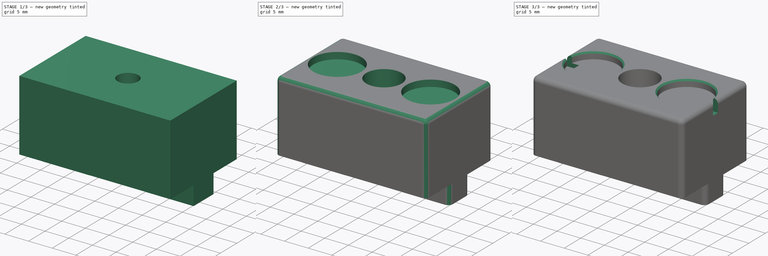
[diagram: build sequence overview — one tinted view per stage of 3, left to right]
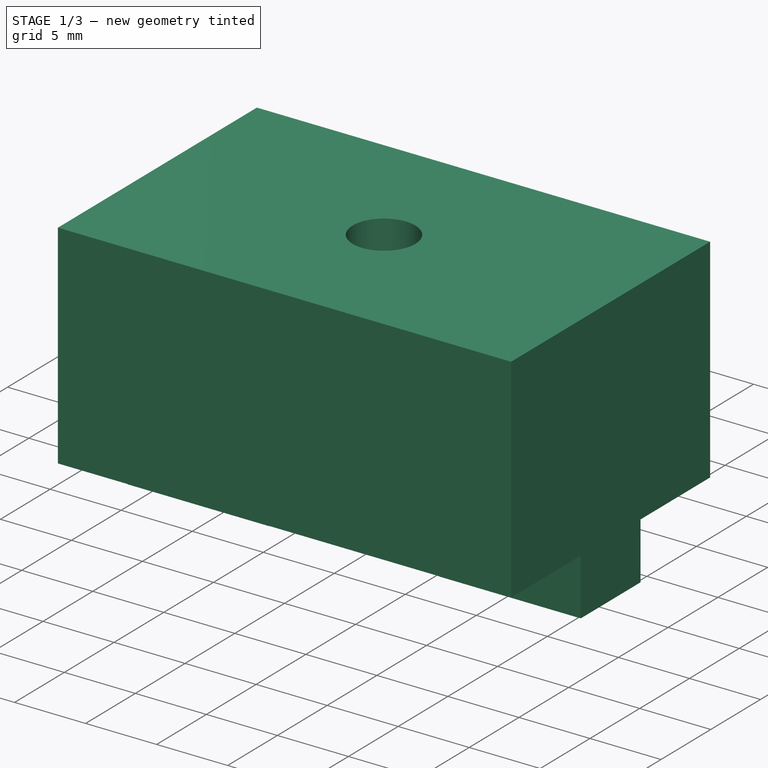
[diagram: stage 1 of 3 — iso view after this stage's code; geometry added in this stage tinted green]
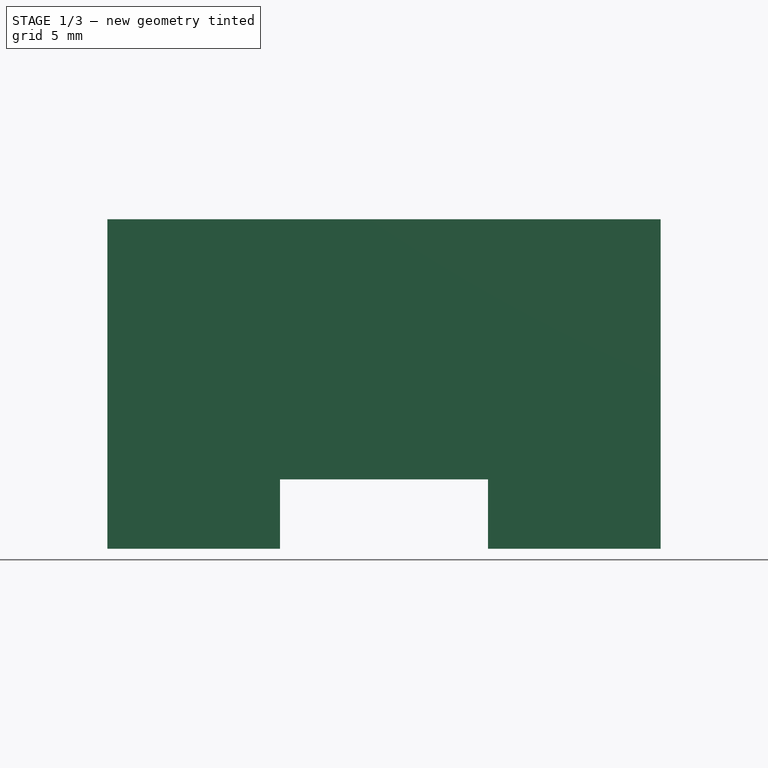
[diagram: stage 1 of 3 — front view after this stage's code; geometry added in this stage tinted green]
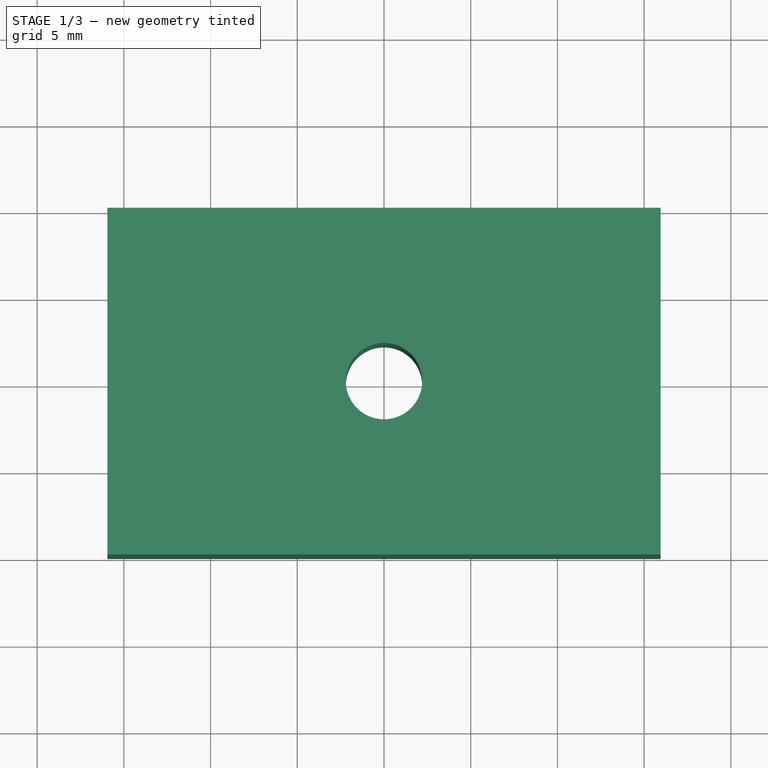
[diagram: stage 1 of 3 — top view after this stage's code; geometry added in this stage tinted green]
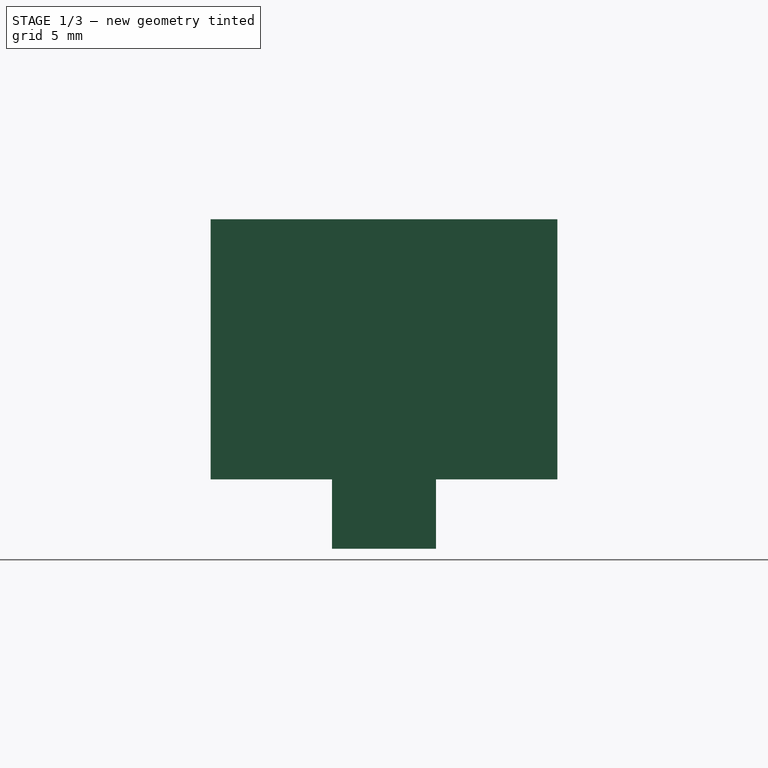
[diagram: stage 1 of 3 — right view after this stage's code; geometry added in this stage tinted green]
FCSTD DOCUMENT  (FreeCAD 0.18.3R)
Label: MagnetHolder
License: All rights reserved
LicenseURL: http://en.wikipedia.org/wiki/All_rights_reserved
objects: Sketcher::SketchObject×6, PartDesign::Pocket×3, PartDesign::Pad×2, PartDesign::Fillet×1, PartDesign::Chamfer×1, PartDesign::Body×1, App::Part×1
note: 19 computed .brp shape members not serialized (recipe doc carries the construction recipe); baked Part::Feature solids carry a one-line shape summary decoded from their .brp

FEATURE [Sketcher::SketchObject] Sketch  label="Template"
  MapMode = 5
  Support = -> [XY_Plane001]
  sketch-geometry (20):
    g0: LineSegment StartX=-15.95 StartY=10 StartZ=0 EndX=15.95 EndY=10 EndZ=0
    g1: LineSegment StartX=15.95 StartY=10 StartZ=0 EndX=15.95 EndY=-10 EndZ=0
    g2: LineSegment StartX=15.95 StartY=-10 StartZ=0 EndX=-15.95 EndY=-10 EndZ=0
    g3: LineSegment StartX=-15.95 StartY=-10 StartZ=0 EndX=-15.95 EndY=10 EndZ=0
    g4: LineSegment StartX=-15.95 StartY=0 StartZ=0 EndX=15.95 EndY=0 EndZ=0
    g5: Circle CenterX=0 CenterY=0 CenterZ=0 NormalX=0 NormalY=0 NormalZ=1 AngleXU=0 Radius=3.75
    g6: LineSegment StartX=-3.75 StartY=10 StartZ=0 EndX=-3.75 EndY=-10 EndZ=0
    g7: LineSegment StartX=3.75 StartY=10 StartZ=0 EndX=3.75 EndY=-10 EndZ=0
    g8: LineSegment StartX=6 StartY=3 StartZ=0 EndX=15.95 EndY=3 EndZ=0
    g9: LineSegment StartX=15.95 StartY=-3 StartZ=0 EndX=6 EndY=-3 EndZ=0
    g10: LineSegment StartX=6 StartY=-3 StartZ=0 EndX=6 EndY=3 EndZ=0
    g11: Circle CenterX=0 CenterY=0 CenterZ=0 NormalX=0 NormalY=0 NormalZ=1 AngleXU=0 Radius=2.2
    g12: Circle CenterX=9.85 CenterY=-2e-16 CenterZ=0 NormalX=0 NormalY=0 NormalZ=1 AngleXU=0 Radius=5.1
    g13: LineSegment StartX=0 StartY=10 StartZ=0 EndX=0 EndY=-10 EndZ=0
    g14: LineSegment StartX=4.75 StartY=10 StartZ=0 EndX=4.75 EndY=-10 EndZ=0
    g15: LineSegment StartX=-4.75 StartY=10 StartZ=0 EndX=-4.75 EndY=-10 EndZ=0
    g16: Circle CenterX=-9.85 CenterY=0 CenterZ=0 NormalX=0 NormalY=0 NormalZ=1 AngleXU=0 Radius=5.1
    g17: LineSegment StartX=-15.95 StartY=3 StartZ=0 EndX=-6 EndY=3 EndZ=0
    g18: LineSegment StartX=-6 StartY=3 StartZ=0 EndX=-6 EndY=-3 EndZ=0
    g19: LineSegment StartX=-6 StartY=-3 StartZ=0 EndX=-15.95 EndY=-3 EndZ=0
  constraints (60):
    c: Coincident(g1,g2)
    c: Coincident(g2,g3)
    c: Horizontal(g0)
    c: Horizontal(g2)
    c: Vertical(g1)
    c: Vertical(g3)
    c: PointOnObject(g4,g3)
    c: Symmetric(g0,g2,g4)
    c: Coincident(g0,g3)
    c: Coincident(g0,g1)
    c: PointOnObject(g4,g1)
    c: PointOnObject(g5,g4)
    c: Radius(g5) = 3.75
    c: PointOnObject(g6,g0)
    c: PointOnObject(g6,g2)
    c: Vertical(g6)
    c: Tangent(g6,g5)
    c: PointOnObject(g7,g0)
    c: PointOnObject(g7,g2)
    c: Vertical(g7)
    c: Tangent(g7,g5)
    c: Coincident(g9,g10)
    c: Coincident(g10,g8)
    c: Horizontal(g8)
    c: Horizontal(g9)
    c: Vertical(g10)
    c: PointOnObject(g9,g1)
    c: Symmetric(g9,g8,g4)
    c: DistanceY(g9,g8) = 6
    c: DistanceX(g5,g8) = 6
    c: Coincident(g11,g5)
    c: Radius(g11) = 2.2
    c: Symmetric(g7,g0,g12)
    c: Radius(g12) = 5.1
    c: PointOnObject(g13,g2)
    c: PointOnObject(g13,g0)
    c: PointOnObject(g5,g13)
    c: PointOnObject(g14,g0)
    c: PointOnObject(g14,g2)
    c: Vertical(g14)
    c: Tangent(g14,g12)
    c: DistanceX(g7,g14) = 1
    c: DistanceY(g1,g1) = 20
    c: Symmetric(g0,g0,g13)
    c: PointOnObject(g15,g2)
    c: Vertical(g15)
    c: Symmetric(g15,g14,g13)
    c: PointOnObject(g16,g4)
    c: Equal(g16,g12)
    c: Tangent(g16,g15)
    c: PointOnObject(g17,g3)
    c: Horizontal(g17)
    c: Coincident(g17,g18)
    c: Vertical(g18)
    c: Coincident(g18,g19)
    c: PointOnObject(g19,g3)
    c: Horizontal(g19)
    c: Equal(g18,g10)
    c: Symmetric(g17,g8,g13)
    c: Coincident(g5,g-1)  '__ANCHOR__'
FEATURE [Sketcher::SketchObject] Sketch001
  ExternalGeometry = -> [Sketch]
  MapMode = 5
  Support = -> [XY_Plane001]
  sketch-geometry (5):
    g0: LineSegment StartX=-15.95 StartY=10 StartZ=0 EndX=15.95 EndY=10 EndZ=0
    g1: LineSegment StartX=15.95 StartY=10 StartZ=0 EndX=15.95 EndY=-10 EndZ=0
    g2: LineSegment StartX=15.95 StartY=-10 StartZ=0 EndX=-15.95 EndY=-10 EndZ=0
    g3: LineSegment StartX=-15.95 StartY=-10 StartZ=0 EndX=-15.95 EndY=10 EndZ=0
    g4: Circle CenterX=0 CenterY=0 CenterZ=0 NormalX=0 NormalY=0 NormalZ=1 AngleXU=0 Radius=2.2
  constraints (10):
    c: Coincident(g-3,g0)
    c: Coincident(g0,g-4)
    c: Coincident(g0,g1)
    c: Coincident(g1,g-4)
    c: Coincident(g1,g2)
    c: Coincident(g2,g-3)
    c: Coincident(g2,g3)
    c: Coincident(g3,g0)
    c: Coincident(g4,g-5)
    c: Equal(g4,g-5)
FEATURE [PartDesign::Pad] Pad
  Length = 15
  Length2 = 100
  Profile = -> Sketch001
  Type = 0
FEATURE [Sketcher::SketchObject] Sketch002
  ExternalGeometry = -> [Sketch]
  MapMode = 5
  Support = -> [XY_Plane001]
  sketch-geometry (8):
    g0: LineSegment StartX=6 StartY=3 StartZ=0 EndX=15.95 EndY=3 EndZ=0
    g1: LineSegment StartX=15.95 StartY=3 StartZ=0 EndX=15.95 EndY=-3 EndZ=0
    g2: LineSegment StartX=15.95 StartY=-3 StartZ=0 EndX=6 EndY=-3 EndZ=0
    g3: LineSegment StartX=6 StartY=-3 StartZ=0 EndX=6 EndY=3 EndZ=0
    g4: LineSegment StartX=-15.95 StartY=3 StartZ=0 EndX=-6 EndY=3 EndZ=0
    g5: LineSegment StartX=-6 StartY=3 StartZ=0 EndX=-6 EndY=-3 EndZ=0
    g6: LineSegment StartX=-6 StartY=-3 StartZ=0 EndX=-15.95 EndY=-3 EndZ=0
    g7: LineSegment StartX=-15.95 StartY=-3 StartZ=0 EndX=-15.95 EndY=3 EndZ=0
  constraints (18):
    c: Coincident(g-3,g0)
    c: Coincident(g0,g-3)
    c: Coincident(g0,g1)
    c: Coincident(g1,g-4)
    c: Coincident(g1,g2)
    c: Coincident(g2,g-4)
    c: Coincident(g2,g3)
    c: Coincident(g3,g0)
    c: Coincident(g4,g5)
    c: Coincident(g5,g6)
    c: Coincident(g6,g7)
    c: Coincident(g7,g4)
    c: Horizontal(g4)
    c: Horizontal(g6)
    c: Vertical(g5)
    c: Vertical(g7)
    c: Coincident(g5,g-6)
    c: Coincident(g4,g-5)
FEATURE [PartDesign::Pad] Pad001
  BaseFeature = -> Pad
  Length = 4
  Length2 = 100
  Profile = -> Sketch002
  Reversed = true
  Type = 0
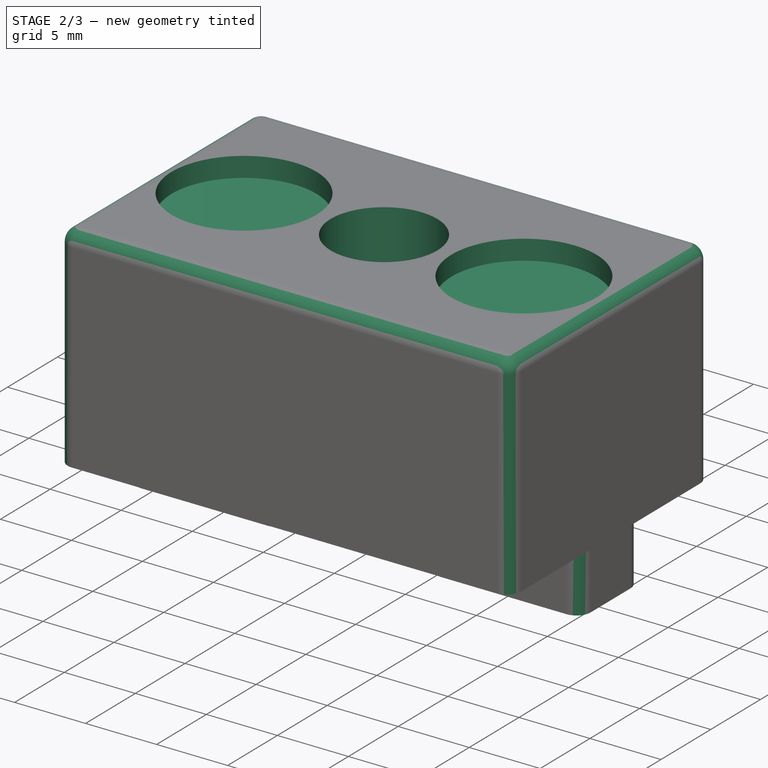
[diagram: stage 2 of 3 — iso view after this stage's code; geometry added in this stage tinted green]
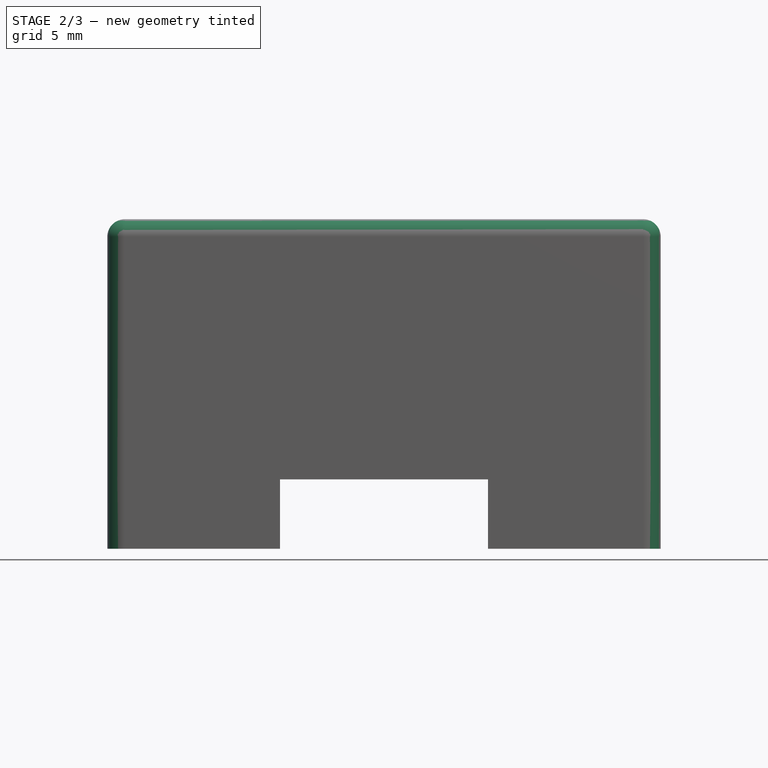
[diagram: stage 2 of 3 — front view after this stage's code; geometry added in this stage tinted green]
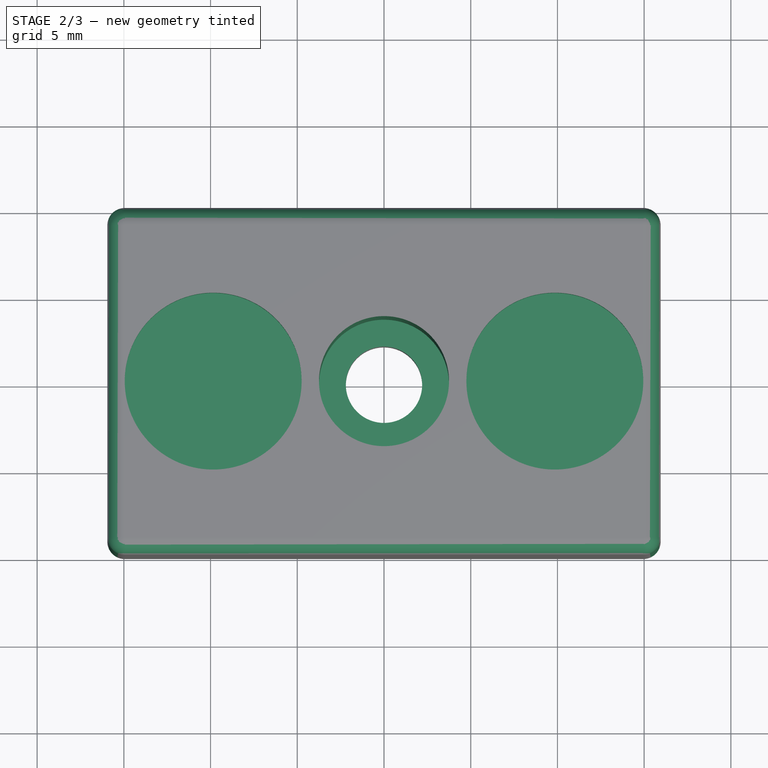
[diagram: stage 2 of 3 — top view after this stage's code; geometry added in this stage tinted green]
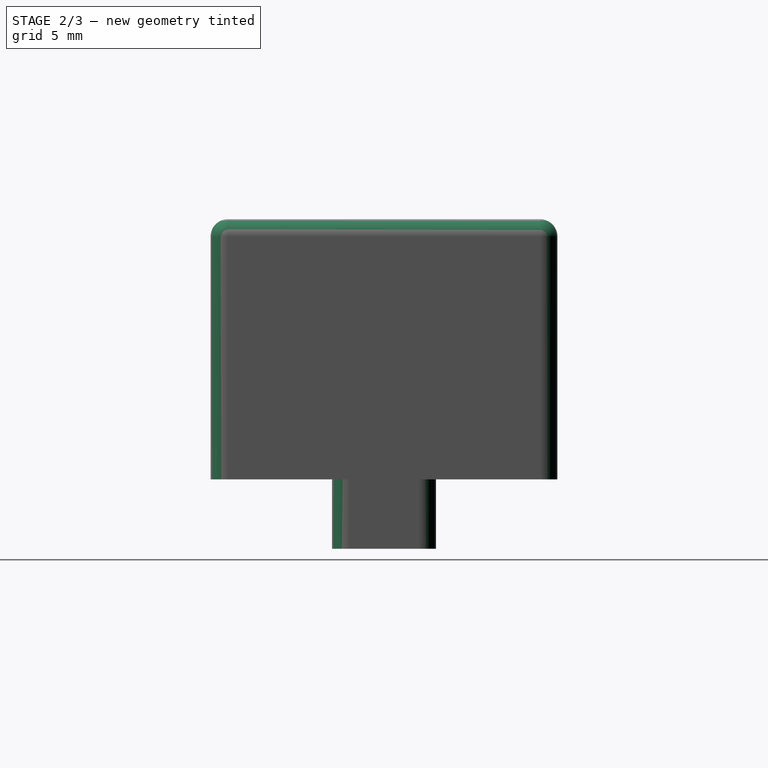
[diagram: stage 2 of 3 — right view after this stage's code; geometry added in this stage tinted green]
FEATURE [Sketcher::SketchObject] Sketch003
  AttachmentOffset = pos=(0,0,15) rot=(0,0,1;0rad)
  ExternalGeometry = -> [Sketch]
  MapMode = 5
  Placement = pos=(0,0,15) rot=(0,0,1;0rad)
  Support = -> [XY_Plane001]
  expr: AttachmentOffset.Base.z = Sketch.Placement.Base.z + Pad.Length
  sketch-geometry (2):
    g0: Circle CenterX=9.85 CenterY=-2e-16 CenterZ=0 NormalX=0 NormalY=0 NormalZ=1 AngleXU=0 Radius=5.1
    g1: Circle CenterX=-9.85 CenterY=0 CenterZ=0 NormalX=0 NormalY=0 NormalZ=1 AngleXU=0 Radius=5.1
  constraints (4):
    c: Equal(g0,g-3)
    c: Coincident(g0,g-3)
    c: Coincident(g1,g-4)
    c: Equal(g1,g-4)
FEATURE [Sketcher::SketchObject] Sketch004
  AttachmentOffset = pos=(0,0,15) rot=(0,0,1;0rad)
  ExternalGeometry = -> [Sketch]
  MapMode = 5
  Placement = pos=(0,0,15) rot=(0,0,1;0rad)
  Support = -> [XY_Plane001]
  expr: AttachmentOffset.Base.z = Sketch003.Placement.Base.z
  sketch-geometry (1):
    g0: Circle CenterX=0 CenterY=0 CenterZ=0 NormalX=0 NormalY=0 NormalZ=1 AngleXU=0 Radius=3.75
  constraints (2):
    c: Coincident(g0,g-3)
    c: Equal(g0,g-3)
FEATURE [PartDesign::Fillet] Fillet
  Base = -> Pad001 [Edge23,Edge14,Edge4,Edge9,Edge2,Edge1,Edge5,Edge10,Edge29,Edge28,Edge25,Edge26]
  BaseFeature = -> Pad001
  Radius = 1
FEATURE [PartDesign::Pocket] Pocket
  BaseFeature = -> Fillet
  Length = 1.4
  Length2 = 100
  Profile = -> Sketch003
  Type = 0
FEATURE [PartDesign::Pocket] Pocket001
  BaseFeature = -> Pocket
  Length = 12
  Length2 = 100
  Profile = -> Sketch004
  Type = 0
  expr: Length = Pad.Length - 3mm
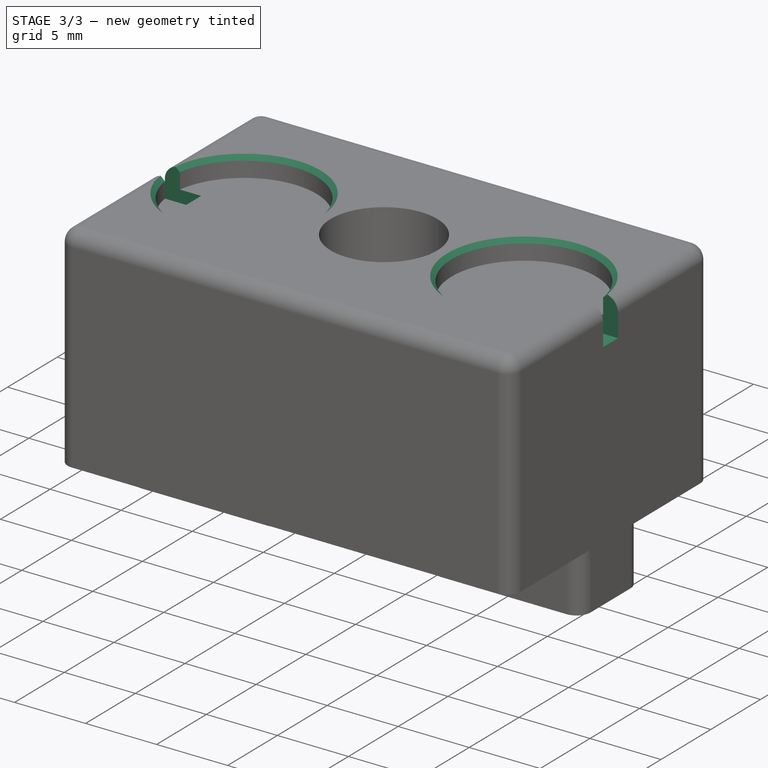
[diagram: stage 3 of 3 — iso view after this stage's code; geometry added in this stage tinted green]
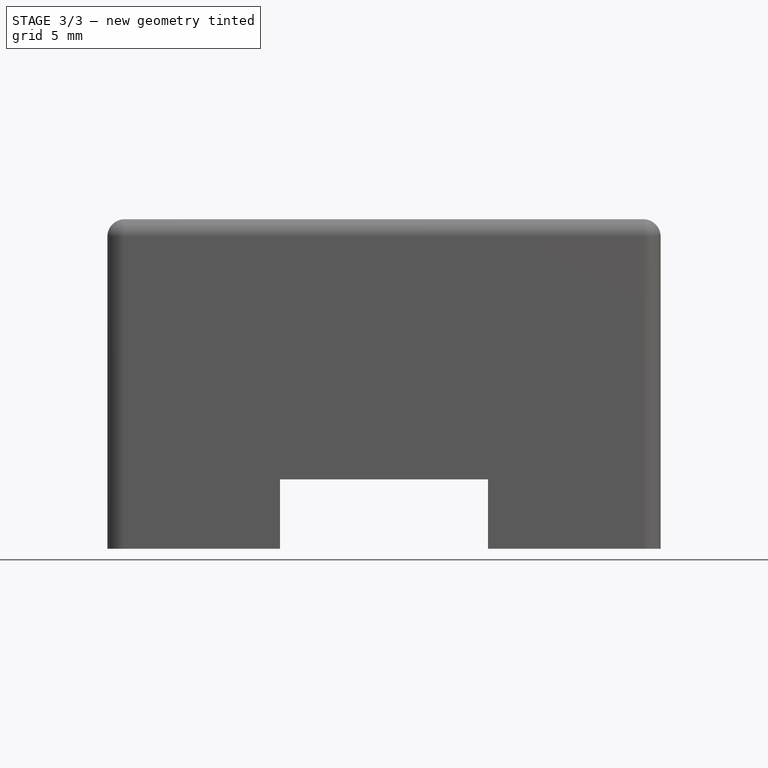
[diagram: stage 3 of 3 — front view after this stage's code; geometry added in this stage tinted green]
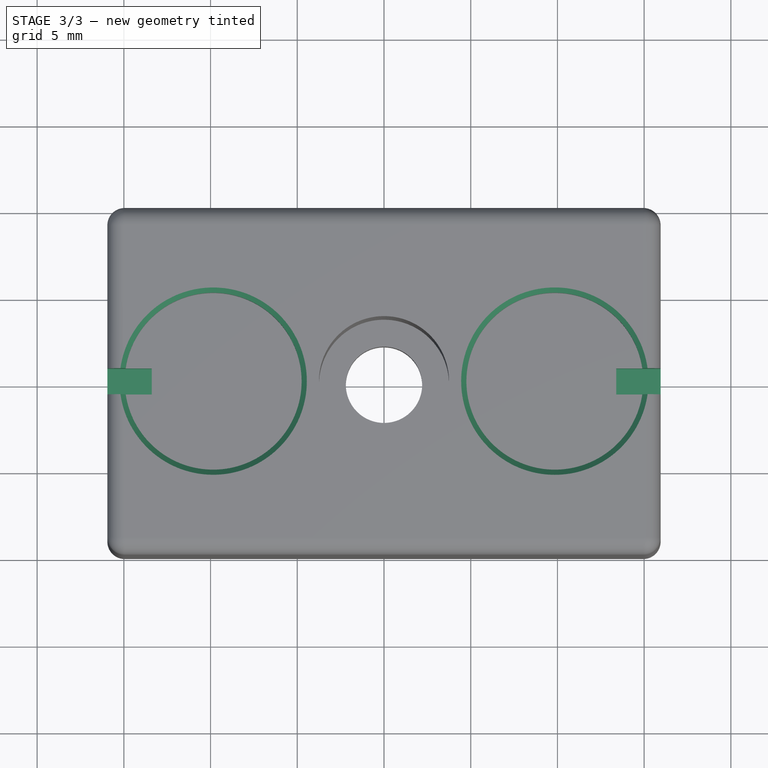
[diagram: stage 3 of 3 — top view after this stage's code; geometry added in this stage tinted green]
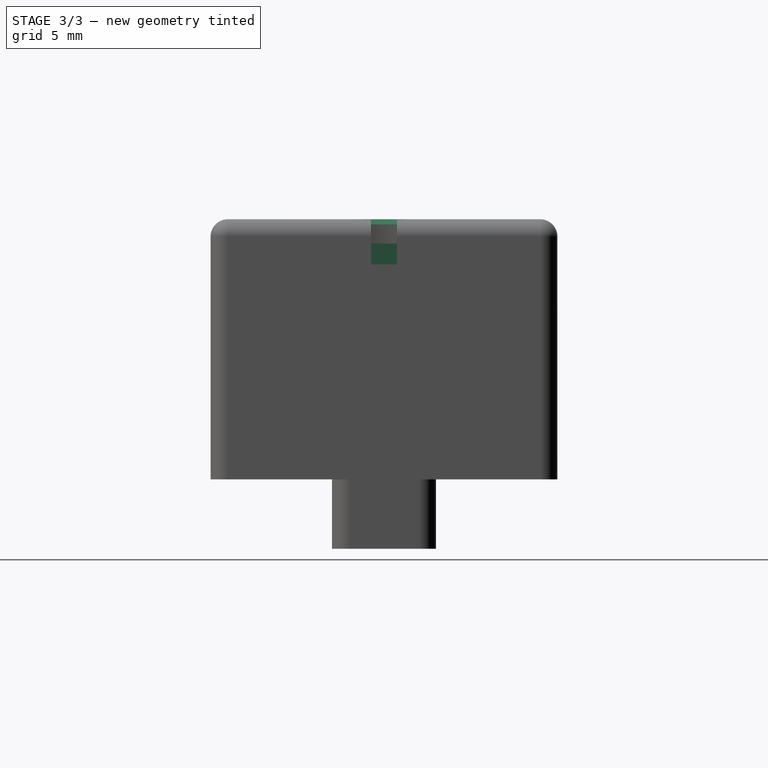
[diagram: stage 3 of 3 — right view after this stage's code; geometry added in this stage tinted green]
FEATURE [Sketcher::SketchObject] Sketch005
  AttachmentOffset = pos=(0,0,15) rot=(0,0,1;0rad)
  ExternalGeometry = -> [Sketch]
  MapMode = 5
  Placement = pos=(0,0,15) rot=(0,0,1;0rad)
  Support = -> [XY_Plane001]
  expr: AttachmentOffset.Base.z = Sketch003.Placement.Base.z
  sketch-geometry (9):
    g0: LineSegment StartX=15.95 StartY=0.75 StartZ=0 EndX=13.3946 EndY=0.75 EndZ=0
    g1: LineSegment StartX=13.3946 StartY=0.75 StartZ=0 EndX=13.3946 EndY=-0.75 EndZ=0
    g2: LineSegment StartX=13.3946 StartY=-0.75 StartZ=0 EndX=15.95 EndY=-0.75 EndZ=0
    g3: LineSegment StartX=15.95 StartY=-0.75 StartZ=0 EndX=15.95 EndY=0.75 EndZ=0
    g4: GeomPoint X=14.8946 Y=0.75 Z=0
    g5: LineSegment StartX=-15.95 StartY=0.75 StartZ=0 EndX=-13.3946 EndY=0.75 EndZ=0
    g6: LineSegment StartX=-13.3946 StartY=0.75 StartZ=0 EndX=-13.3946 EndY=-0.75 EndZ=0
    g7: LineSegment StartX=-13.3946 StartY=-0.75 StartZ=0 EndX=-15.95 EndY=-0.75 EndZ=0
    g8: LineSegment StartX=-15.95 StartY=-0.75 StartZ=0 EndX=-15.95 EndY=0.75 EndZ=0
  constraints (24):
    c: Coincident(g0,g1)
    c: Coincident(g1,g2)
    c: Coincident(g2,g3)
    c: Coincident(g3,g0)
    c: Horizontal(g0)
    c: Horizontal(g2)
    c: Vertical(g1)
    c: PointOnObject(g0,g-3)
    c: Symmetric(g0,g2,g-4)
    c: DistanceY(g3,g3) = 1.5
    c: PointOnObject(g4,g0)
    c: PointOnObject(g4,g-5)
    c: DistanceX(g0,g4) = 1.5
    c: Coincident(g5,g6)
    c: Coincident(g6,g7)
    c: Coincident(g7,g8)
    c: Coincident(g8,g5)
    c: Horizontal(g5)
    c: Horizontal(g7)
    c: Vertical(g6)
    c: Vertical(g8)
    c: PointOnObject(g5,g-6)
    c: Equal(g6,g1)
    c: Symmetric(g5,g0,g-7)
FEATURE [PartDesign::Pocket] Pocket002
  BaseFeature = -> Pocket001
  Length = 2.6
  Length2 = 100
  Profile = -> Sketch005
  Refine = true
  Type = 0
  expr: Length = Pocket.Length + 1.2mm
FEATURE [PartDesign::Chamfer] Chamfer
  Base = -> Pocket002 [Edge68,Edge74]
  BaseFeature = -> Pocket002
  Size = 0.3
FEATURE [PartDesign::Body] Body
  Group = -> [Sketch,Sketch001,Pad,Sketch002,Pad001,Fillet,Sketch003,Pocket,Sketch004,Pocket001,Sketch005,Pocket002,Chamfer]
  Origin = -> Origin001
  Tip = -> Chamfer
FEATURE [App::Part] Part
  Group = -> [Body]
  Origin = -> Origin
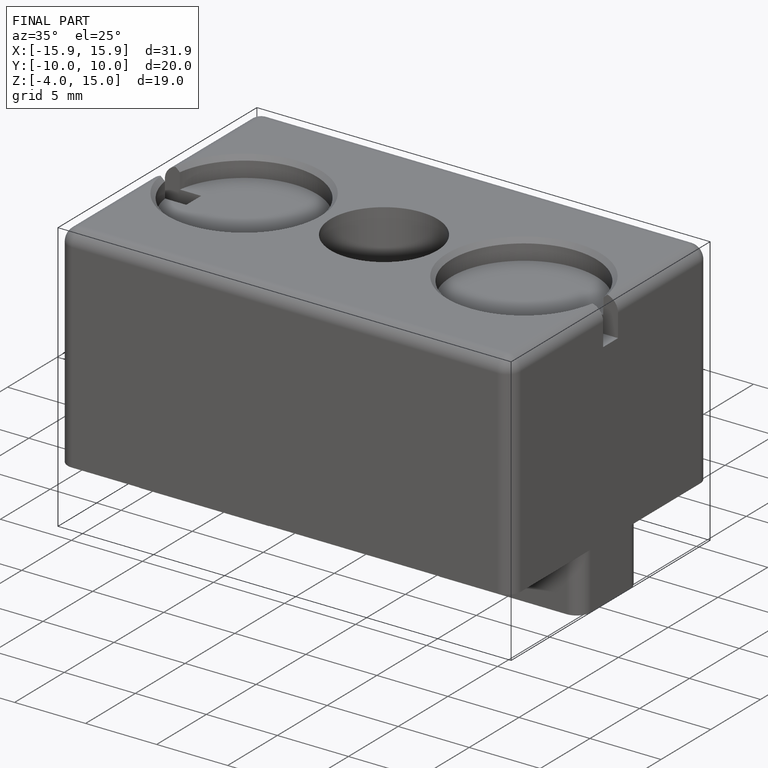
[diagram: finished part — iso view with bounding-box wireframe]
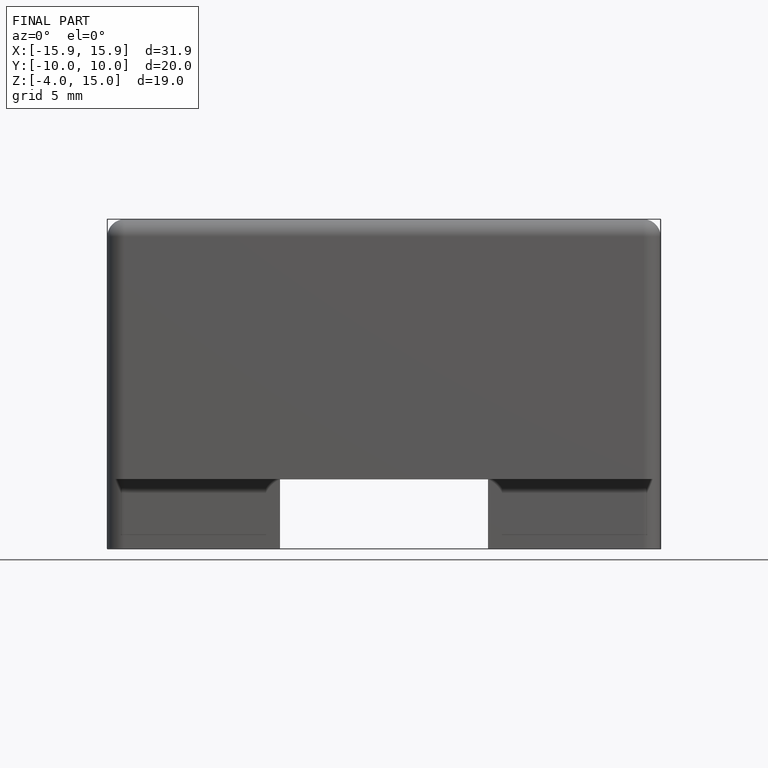
[diagram: finished part — front view with bounding-box wireframe]
